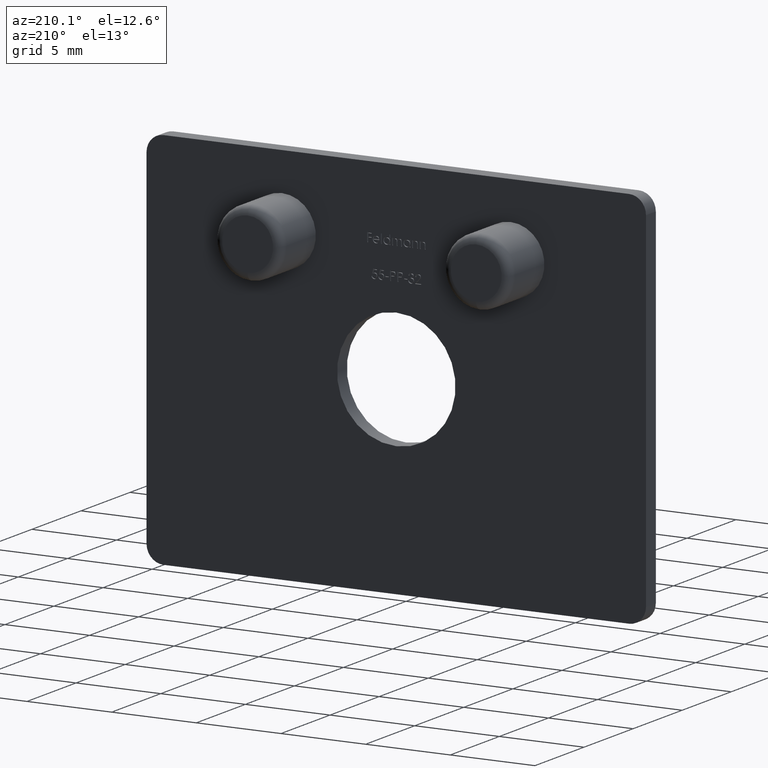
[diagram: clean part render]
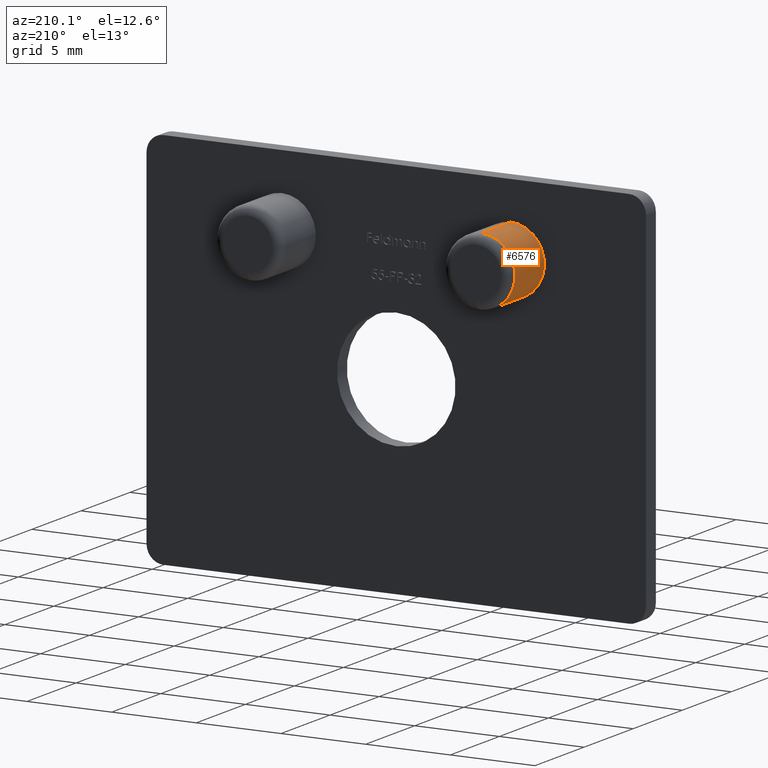
[diagram: same view with one face highlighted and labeled with its STEP entity id]
A machine part, auxiliary view. The second image highlights one B-rep face of the part: STEP entity #6576.
In plain terms, the highlighted cylindrical surface (partial cylindrical patch) has radius 2 mm, axis along (-0, -1, -0).
Its self-contained STEP definition (entity closure, byte-faithful):
#770 = CIRCLE ( 'NONE', #9208, 2.000000000000001800 ) ;
#1149 = VERTEX_POINT ( 'NONE', #11472 ) ;
#1191 = EDGE_CURVE ( 'NONE', #8520, #7680, #6895, .T. ) ;
#1727 = CYLINDRICAL_SURFACE ( 'NONE', #7941, 2.000000000000001800 ) ;
#2062 = LINE ( 'NONE', #6838, #7613 ) ;
#2393 = ORIENTED_EDGE ( 'NONE', *, *, #8378, .T. ) ;
#2988 = VECTOR ( 'NONE', #11704, 1000.000000000000000 ) ;
#3009 = DIRECTION ( 'NONE',  ( 0.0000000000000000000, 0.0000000000000000000, -1.000000000000000000 ) ) ;
#3076 = VERTEX_POINT ( 'NONE', #5200 ) ;
#3195 = ORIENTED_EDGE ( 'NONE', *, *, #3318, .F. ) ;
#3318 = EDGE_CURVE ( 'NONE', #3076, #7680, #2062, .T. ) ;
#3969 = DIRECTION ( 'NONE',  ( -0.0000000000000000000, -1.000000000000000000, 0.0000000000000000000 ) ) ;
#5200 = CARTESIAN_POINT ( 'NONE',  ( -6.749999999999997300, 4.000000000000000000, 9.000000000000003600 ) ) ;
#6576 = ADVANCED_FACE ( 'NONE', ( #9044 ), #1727, .T. ) ;
#6838 = CARTESIAN_POINT ( 'NONE',  ( -6.749999999999997300, 4.500000000000000900, 9.000000000000003600 ) ) ;
#6895 = CIRCLE ( 'NONE', #8611, 2.000000000000001800 ) ;
#7158 = DIRECTION ( 'NONE',  ( -0.0000000000000000000, -1.000000000000000000, -0.0000000000000000000 ) ) ;
#7250 = DIRECTION ( 'NONE',  ( 0.0000000000000000000, 0.0000000000000000000, -1.000000000000000000 ) ) ;
#7613 = VECTOR ( 'NONE', #10648, 1000.000000000000000 ) ;
#7680 = VERTEX_POINT ( 'NONE', #7969 ) ;
#7711 = EDGE_LOOP ( 'NONE', ( #3195, #2393, #9224, #9368 ) ) ;
#7941 = AXIS2_PLACEMENT_3D ( 'NONE', #11871, #7158, #7250 ) ;
#7969 = CARTESIAN_POINT ( 'NONE',  ( -6.749999999999997300, 1.000000000000000000, 9.000000000000003600 ) ) ;
#8378 = EDGE_CURVE ( 'NONE', #3076, #1149, #770, .T. ) ;
#8478 = CARTESIAN_POINT ( 'NONE',  ( -6.749999999999997300, 1.000000000000000000, 4.999999999999999100 ) ) ;
#8520 = VERTEX_POINT ( 'NONE', #8478 ) ;
#8611 = AXIS2_PLACEMENT_3D ( 'NONE', #8957, #10729, #8870 ) ;
#8777 = CARTESIAN_POINT ( 'NONE',  ( -6.749999999999997300, 4.000000000000000000, 7.000000000000000900 ) ) ;
#8870 = DIRECTION ( 'NONE',  ( 0.0000000000000000000, 0.0000000000000000000, -1.000000000000000000 ) ) ;
#8957 = CARTESIAN_POINT ( 'NONE',  ( -6.749999999999997300, 1.000000000000000000, 7.000000000000000900 ) ) ;
#8974 = CARTESIAN_POINT ( 'NONE',  ( -6.749999999999997300, 4.500000000000000900, 4.999999999999999100 ) ) ;
#9044 = FACE_OUTER_BOUND ( 'NONE', #7711, .T. ) ;
#9208 = AXIS2_PLACEMENT_3D ( 'NONE', #8777, #3969, #3009 ) ;
#9224 = ORIENTED_EDGE ( 'NONE', *, *, #11557, .T. ) ;
#9368 = ORIENTED_EDGE ( 'NONE', *, *, #1191, .T. ) ;
#10276 = LINE ( 'NONE', #8974, #2988 ) ;
#10648 = DIRECTION ( 'NONE',  ( -0.0000000000000000000, -1.000000000000000000, -0.0000000000000000000 ) ) ;
#10729 = DIRECTION ( 'NONE',  ( -0.0000000000000000000, 1.000000000000000000, 0.0000000000000000000 ) ) ;
#11472 = CARTESIAN_POINT ( 'NONE',  ( -6.749999999999997300, 4.000000000000000000, 4.999999999999999100 ) ) ;
#11557 = EDGE_CURVE ( 'NONE', #1149, #8520, #10276, .T. ) ;
#11704 = DIRECTION ( 'NONE',  ( -0.0000000000000000000, -1.000000000000000000, -0.0000000000000000000 ) ) ;
#11871 = CARTESIAN_POINT ( 'NONE',  ( -6.749999999999997300, 4.500000000000000900, 7.000000000000000900 ) ) ;